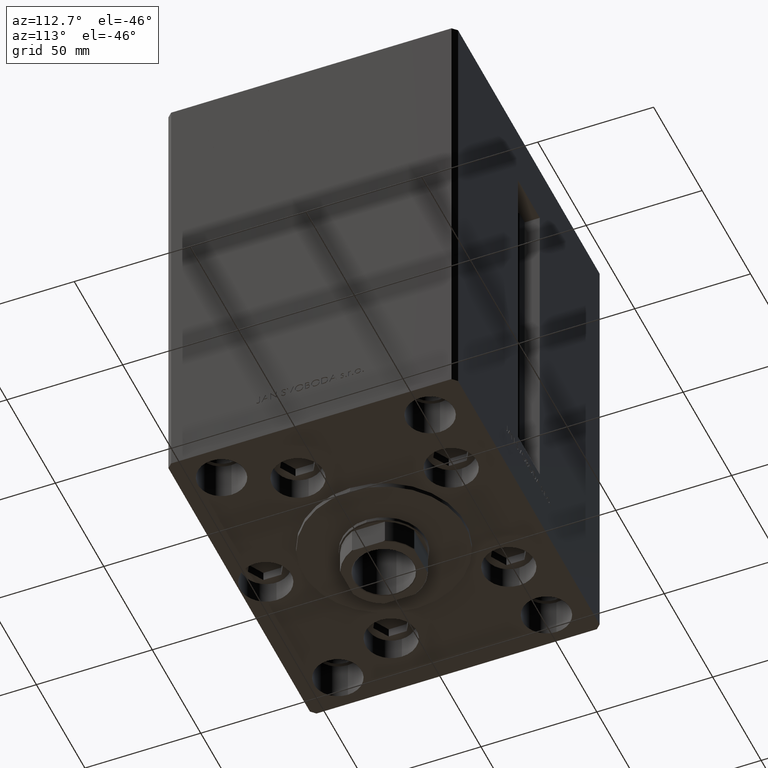
[diagram: clean part render]
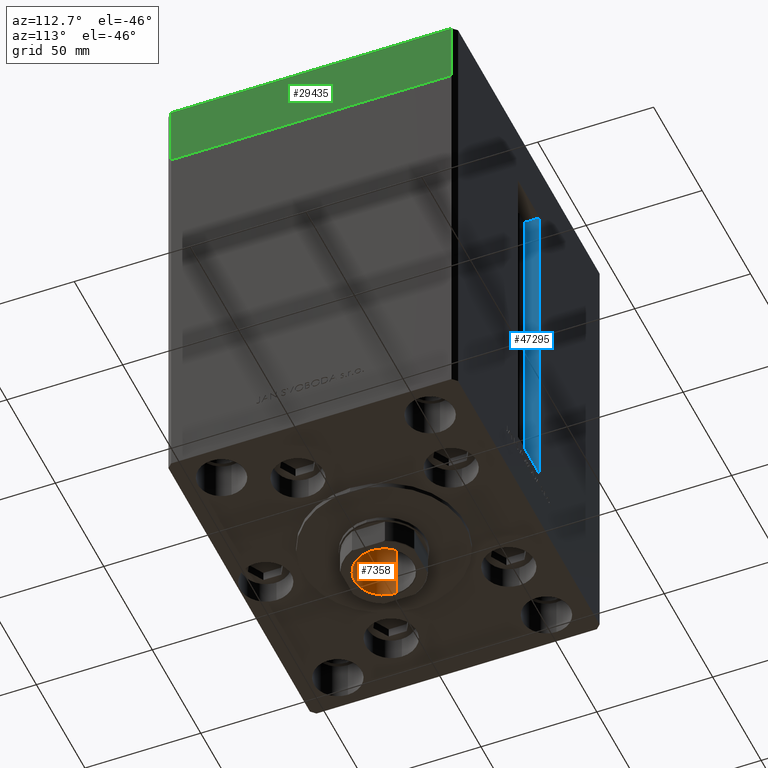
[diagram: same view with three faces highlighted in distinct colors, each labeled with its STEP entity id]
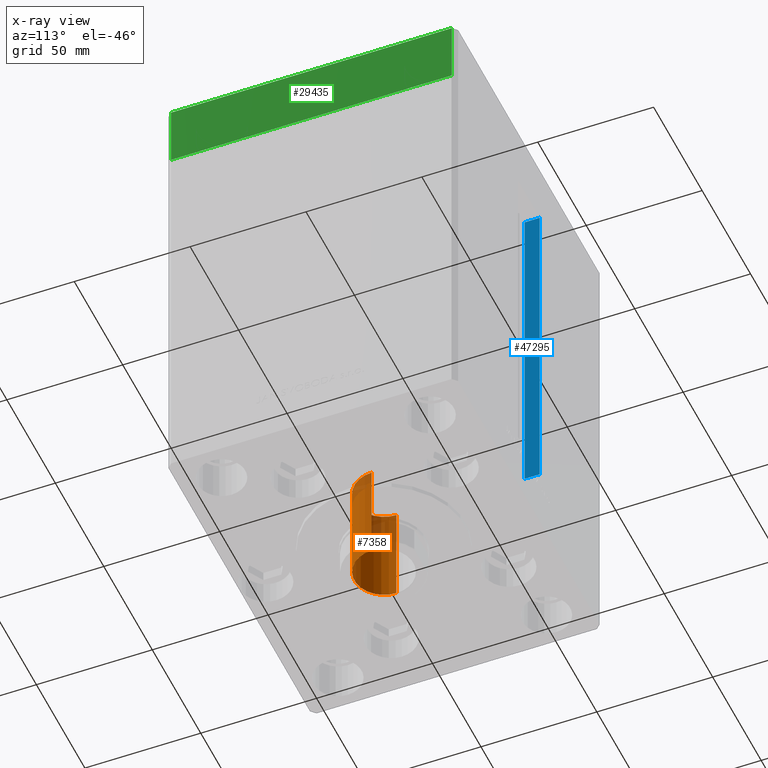
[diagram: x-ray of the same camera — body ghosted, the three highlighted faces saturated]
A machine part, auxiliary view with three faces highlighted in distinct colors.
The next image is the same camera in x-ray (body ghosted, the three faces saturated) — at least one of them is partly hidden behind the body in this view.
Their STEP definitions:

[orange] entity #7358 — the highlighted cylindrical surface (edge-blend (fillet) strip) has radius 12.75 mm, axis along (0, 0, -1).
#1393 = CARTESIAN_POINT ( 'NONE',  ( -12.74999999999999112, 1.561424668912874125E-15, 137.5000000000000000 ) ) ;
#1412 = CARTESIAN_POINT ( 'NONE',  ( -12.74999999999999467, 1.561424668912874519E-15, 182.2000000000000171 ) ) ;
#3578 = ORIENTED_EDGE ( 'NONE', *, *, #34465, .F. ) ;
#3626 = VERTEX_POINT ( 'NONE', #38892 ) ;
#7358 = ADVANCED_FACE ( 'NONE', ( #20300 ), #35558, .F. ) ;
#9623 = EDGE_LOOP ( 'NONE', ( #50202, #11309, #29140, #3578 ) ) ;
#9910 = CARTESIAN_POINT ( 'NONE',  ( -12.74999999999999467, 1.561424668912874519E-15, 182.5000000000000284 ) ) ;
#11309 = ORIENTED_EDGE ( 'NONE', *, *, #37654, .T. ) ;
#14608 = DIRECTION ( 'NONE',  ( -0.000000000000000000, -0.000000000000000000, 1.000000000000000000 ) ) ;
#15376 = CARTESIAN_POINT ( 'NONE',  ( 12.74999999999999467, 0.000000000000000000, 182.2000000000000171 ) ) ;
#16055 = VECTOR ( 'NONE', #21862, 1000.000000000000000 ) ;
#19178 = DIRECTION ( 'NONE',  ( 1.000000000000000000, 0.000000000000000000, 0.000000000000000000 ) ) ;
#19291 = DIRECTION ( 'NONE',  ( -0.000000000000000000, -0.000000000000000000, 1.000000000000000000 ) ) ;
#19477 = AXIS2_PLACEMENT_3D ( 'NONE', #46255, #42202, #42455 ) ;
#19552 = CARTESIAN_POINT ( 'NONE',  ( 0.000000000000000000, 0.000000000000000000, 182.5000000000000284 ) ) ;
#20300 = FACE_OUTER_BOUND ( 'NONE', #9623, .T. ) ;
#21119 = LINE ( 'NONE', #9910, #16055 ) ;
#21862 = DIRECTION ( 'NONE',  ( -0.000000000000000000, -0.000000000000000000, 1.000000000000000000 ) ) ;
#23115 = DIRECTION ( 'NONE',  ( 1.000000000000000000, 0.000000000000000000, 0.000000000000000000 ) ) ;
#24212 = CARTESIAN_POINT ( 'NONE',  ( 12.74999999999999467, 0.000000000000000000, 182.5000000000000284 ) ) ;
#26510 = VECTOR ( 'NONE', #39716, 1000.000000000000000 ) ;
#29140 = ORIENTED_EDGE ( 'NONE', *, *, #42466, .T. ) ;
#31090 = LINE ( 'NONE', #24212, #26510 ) ;
#32698 = VERTEX_POINT ( 'NONE', #1393 ) ;
#33971 = VERTEX_POINT ( 'NONE', #1412 ) ;
#33981 = CIRCLE ( 'NONE', #19477, 12.74999999999999467 ) ;
#34125 = EDGE_CURVE ( 'NONE', #32698, #3626, #43544, .T. ) ;
#34465 = EDGE_CURVE ( 'NONE', #3626, #48322, #31090, .T. ) ;
#35558 = CYLINDRICAL_SURFACE ( 'NONE', #38856, 12.74999999999999467 ) ;
#37654 = EDGE_CURVE ( 'NONE', #32698, #33971, #21119, .T. ) ;
#38856 = AXIS2_PLACEMENT_3D ( 'NONE', #19552, #19291, #23115 ) ;
#38892 = CARTESIAN_POINT ( 'NONE',  ( 12.74999999999999112, 0.000000000000000000, 137.5000000000000000 ) ) ;
#39716 = DIRECTION ( 'NONE',  ( -0.000000000000000000, -0.000000000000000000, 1.000000000000000000 ) ) ;
#41933 = AXIS2_PLACEMENT_3D ( 'NONE', #46386, #14608, #19178 ) ;
#42202 = DIRECTION ( 'NONE',  ( 0.000000000000000000, 0.000000000000000000, 1.000000000000000000 ) ) ;
#42455 = DIRECTION ( 'NONE',  ( 1.000000000000000000, 0.000000000000000000, 0.000000000000000000 ) ) ;
#42466 = EDGE_CURVE ( 'NONE', #33971, #48322, #33981, .T. ) ;
#43544 = CIRCLE ( 'NONE', #41933, 12.74999999999999112 ) ;
#46255 = CARTESIAN_POINT ( 'NONE',  ( 0.000000000000000000, 0.000000000000000000, 182.2000000000000171 ) ) ;
#46386 = CARTESIAN_POINT ( 'NONE',  ( 0.000000000000000000, 0.000000000000000000, 137.5000000000000000 ) ) ;
#48322 = VERTEX_POINT ( 'NONE', #15376 ) ;
#50202 = ORIENTED_EDGE ( 'NONE', *, *, #34125, .F. ) ;

[blue] entity #47295 — the highlighted planar face has unit normal (-1, 0, 0).
#1164 = VECTOR ( 'NONE', #37693, 1000.000000000000000 ) ;
#1925 = EDGE_CURVE ( 'NONE', #4067, #10155, #20665, .T. ) ;
#3708 = EDGE_CURVE ( 'NONE', #25657, #32324, #44633, .T. ) ;
#4067 = VERTEX_POINT ( 'NONE', #28033 ) ;
#4984 = PLANE ( 'NONE',  #43863 ) ;
#5022 = CARTESIAN_POINT ( 'NONE',  ( -11.25000000000000178, 62.49999999999999289, 147.0000000000000000 ) ) ;
#7421 = LINE ( 'NONE', #45568, #1164 ) ;
#7894 = VECTOR ( 'NONE', #35580, 1000.000000000000000 ) ;
#8951 = ORIENTED_EDGE ( 'NONE', *, *, #1925, .T. ) ;
#9665 = VECTOR ( 'NONE', #36837, 1000.000000000000000 ) ;
#10155 = VERTEX_POINT ( 'NONE', #5022 ) ;
#11930 = ORIENTED_EDGE ( 'NONE', *, *, #3708, .F. ) ;
#12662 = VECTOR ( 'NONE', #39240, 1000.000000000000000 ) ;
#13645 = CARTESIAN_POINT ( 'NONE',  ( -11.25000000000000178, 55.99999999999999289, 0.000000000000000000 ) ) ;
#13918 = LINE ( 'NONE', #21329, #9665 ) ;
#15673 = CARTESIAN_POINT ( 'NONE',  ( -11.25000000000000178, 55.99999999999999289, 0.000000000000000000 ) ) ;
#15926 = DIRECTION ( 'NONE',  ( -1.000000000000000000, 0.000000000000000000, 0.000000000000000000 ) ) ;
#16426 = DIRECTION ( 'NONE',  ( 0.000000000000000000, 0.000000000000000000, 1.000000000000000000 ) ) ;
#19914 = CARTESIAN_POINT ( 'NONE',  ( -11.25000000000000178, 62.49999999999999289, 0.000000000000000000 ) ) ;
#20665 = LINE ( 'NONE', #19914, #12662 ) ;
#21329 = CARTESIAN_POINT ( 'NONE',  ( -11.25000000000000178, 0.000000000000000000, 147.0000000000000000 ) ) ;
#25657 = VERTEX_POINT ( 'NONE', #13645 ) ;
#25927 = EDGE_CURVE ( 'NONE', #4067, #25657, #7421, .T. ) ;
#28033 = CARTESIAN_POINT ( 'NONE',  ( -11.25000000000000178, 62.49999999999999289, 0.000000000000000000 ) ) ;
#32324 = VERTEX_POINT ( 'NONE', #47982 ) ;
#35580 = DIRECTION ( 'NONE',  ( -0.000000000000000000, -0.000000000000000000, 1.000000000000000000 ) ) ;
#36837 = DIRECTION ( 'NONE',  ( 0.000000000000000000, 1.000000000000000000, 0.000000000000000000 ) ) ;
#37693 = DIRECTION ( 'NONE',  ( -0.000000000000000000, -1.000000000000000000, -0.000000000000000000 ) ) ;
#39240 = DIRECTION ( 'NONE',  ( -0.000000000000000000, -0.000000000000000000, 1.000000000000000000 ) ) ;
#39472 = ORIENTED_EDGE ( 'NONE', *, *, #25927, .F. ) ;
#40817 = CARTESIAN_POINT ( 'NONE',  ( -11.25000000000000178, 55.99999999999999289, 0.000000000000000000 ) ) ;
#41327 = EDGE_LOOP ( 'NONE', ( #11930, #39472, #8951, #43008 ) ) ;
#43008 = ORIENTED_EDGE ( 'NONE', *, *, #43706, .F. ) ;
#43706 = EDGE_CURVE ( 'NONE', #32324, #10155, #13918, .T. ) ;
#43863 = AXIS2_PLACEMENT_3D ( 'NONE', #15673, #15926, #16426 ) ;
#44633 = LINE ( 'NONE', #40817, #7894 ) ;
#45568 = CARTESIAN_POINT ( 'NONE',  ( -11.25000000000000178, 55.99999999999999289, 0.000000000000000000 ) ) ;
#47191 = FACE_OUTER_BOUND ( 'NONE', #41327, .T. ) ;
#47295 = ADVANCED_FACE ( 'NONE', ( #47191 ), #4984, .F. ) ;
#47982 = CARTESIAN_POINT ( 'NONE',  ( -11.25000000000000178, 55.99999999999999289, 147.0000000000000000 ) ) ;

[green] entity #29435 — the highlighted planar face has unit normal (1, 0, 0).
#177 = CARTESIAN_POINT ( 'NONE',  ( 75.00000000000001421, -60.50000000000000711, -27.00000000000000000 ) ) ;
#433 = EDGE_CURVE ( 'NONE', #21926, #13396, #14895, .T. ) ;
#1954 = AXIS2_PLACEMENT_3D ( 'NONE', #20988, #9538, #25047 ) ;
#2064 = VECTOR ( 'NONE', #22536, 1000.000000000000000 ) ;
#3260 = CARTESIAN_POINT ( 'NONE',  ( 75.00000000000001421, -60.50000000000000711, -27.00000000000000000 ) ) ;
#6168 = ORIENTED_EDGE ( 'NONE', *, *, #48060, .F. ) ;
#7270 = CARTESIAN_POINT ( 'NONE',  ( 75.00000000000001421, -60.50000000000000711, 0.000000000000000000 ) ) ;
#9538 = DIRECTION ( 'NONE',  ( 1.000000000000000000, 6.881547673296424104E-16, -0.000000000000000000 ) ) ;
#13396 = VERTEX_POINT ( 'NONE', #29486 ) ;
#14895 = LINE ( 'NONE', #7270, #2064 ) ;
#15875 = CARTESIAN_POINT ( 'NONE',  ( 75.00000000000001421, -60.50000000000000711, 0.000000000000000000 ) ) ;
#15989 = EDGE_LOOP ( 'NONE', ( #18110, #6168, #44199, #31217 ) ) ;
#18110 = ORIENTED_EDGE ( 'NONE', *, *, #433, .F. ) ;
#20242 = FACE_OUTER_BOUND ( 'NONE', #15989, .T. ) ;
#20913 = VERTEX_POINT ( 'NONE', #42424 ) ;
#20988 = CARTESIAN_POINT ( 'NONE',  ( 75.00000000000001421, -60.50000000000000711, -27.00000000000000000 ) ) ;
#21926 = VERTEX_POINT ( 'NONE', #15875 ) ;
#22536 = DIRECTION ( 'NONE',  ( -6.881547673296424104E-16, 1.000000000000000000, 0.000000000000000000 ) ) ;
#22795 = CARTESIAN_POINT ( 'NONE',  ( 74.99999999999992895, 60.50000000000002842, -27.00000000000000000 ) ) ;
#24311 = PLANE ( 'NONE',  #1954 ) ;
#25047 = DIRECTION ( 'NONE',  ( -6.881547673296424104E-16, 1.000000000000000000, 0.000000000000000000 ) ) ;
#28009 = EDGE_CURVE ( 'NONE', #49039, #20913, #45731, .T. ) ;
#29435 = ADVANCED_FACE ( 'NONE', ( #20242 ), #24311, .T. ) ;
#29486 = CARTESIAN_POINT ( 'NONE',  ( 74.99999999999992895, 60.50000000000002842, 0.000000000000000000 ) ) ;
#29654 = CARTESIAN_POINT ( 'NONE',  ( 75.00000000000001421, -60.50000000000000711, -27.00000000000000000 ) ) ;
#31217 = ORIENTED_EDGE ( 'NONE', *, *, #45664, .T. ) ;
#33728 = DIRECTION ( 'NONE',  ( 0.000000000000000000, 0.000000000000000000, 1.000000000000000000 ) ) ;
#37105 = DIRECTION ( 'NONE',  ( -6.881547673296424104E-16, 1.000000000000000000, 0.000000000000000000 ) ) ;
#38051 = LINE ( 'NONE', #22795, #45444 ) ;
#39448 = VECTOR ( 'NONE', #37105, 1000.000000000000000 ) ;
#42424 = CARTESIAN_POINT ( 'NONE',  ( 74.99999999999992895, 60.50000000000002842, -27.00000000000000000 ) ) ;
#42908 = LINE ( 'NONE', #177, #47146 ) ;
#44199 = ORIENTED_EDGE ( 'NONE', *, *, #28009, .T. ) ;
#45444 = VECTOR ( 'NONE', #33728, 1000.000000000000000 ) ;
#45664 = EDGE_CURVE ( 'NONE', #20913, #13396, #38051, .T. ) ;
#45731 = LINE ( 'NONE', #3260, #39448 ) ;
#47146 = VECTOR ( 'NONE', #50263, 1000.000000000000000 ) ;
#48060 = EDGE_CURVE ( 'NONE', #49039, #21926, #42908, .T. ) ;
#49039 = VERTEX_POINT ( 'NONE', #29654 ) ;
#50263 = DIRECTION ( 'NONE',  ( 0.000000000000000000, 0.000000000000000000, 1.000000000000000000 ) ) ;